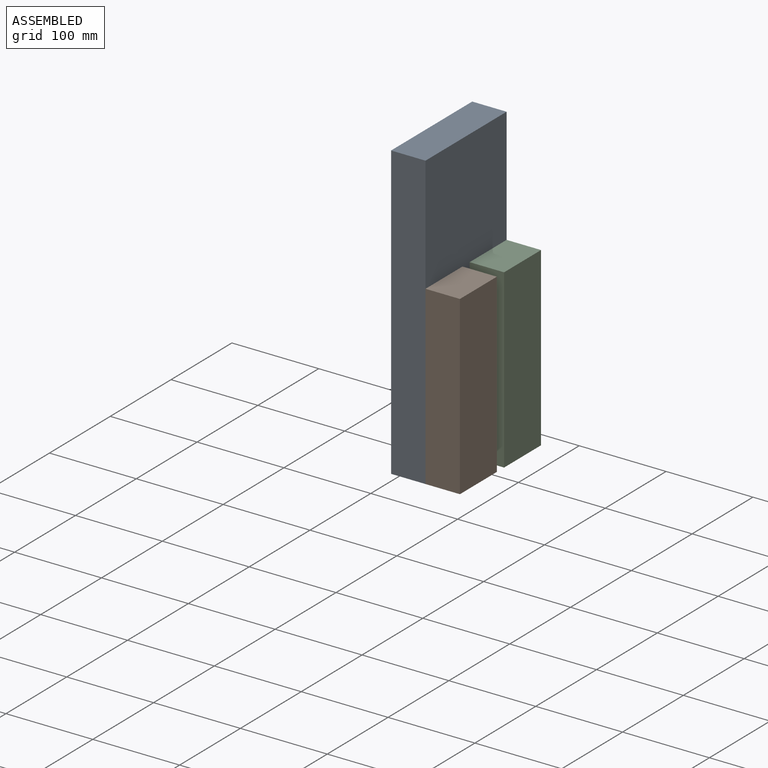
[diagram: assembled view]
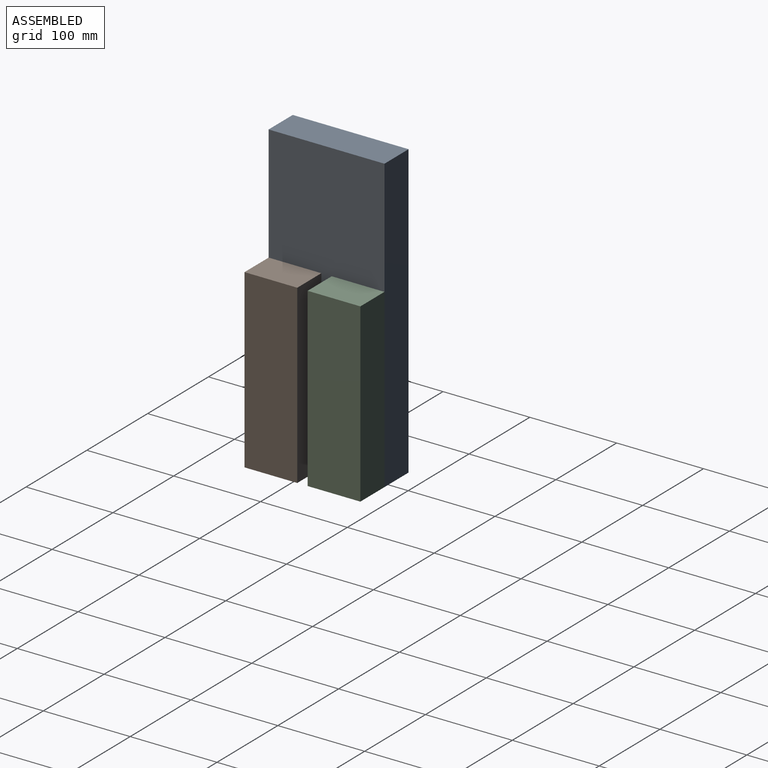
[diagram: assembled view, second angle]
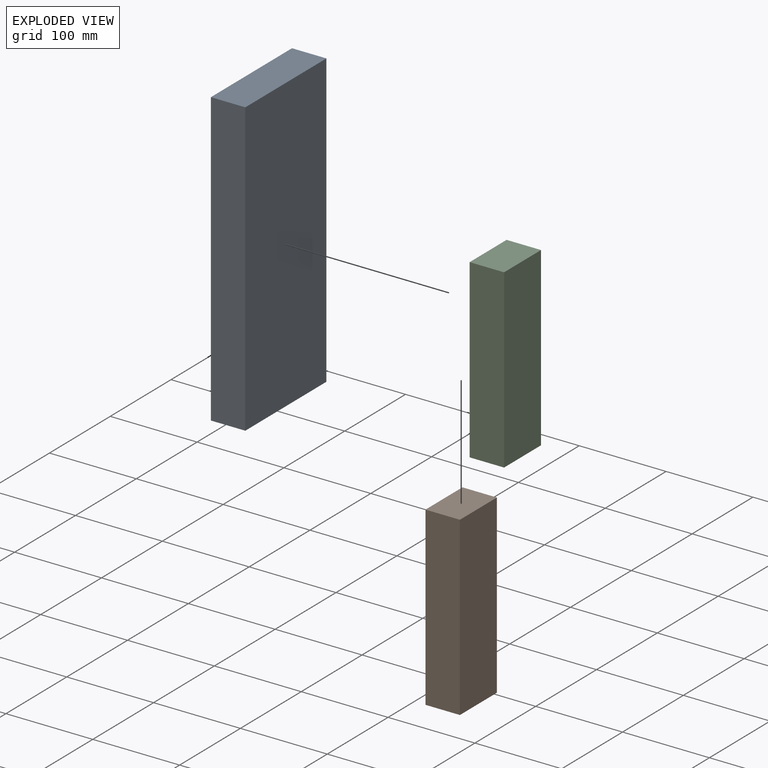
[diagram: exploded view]
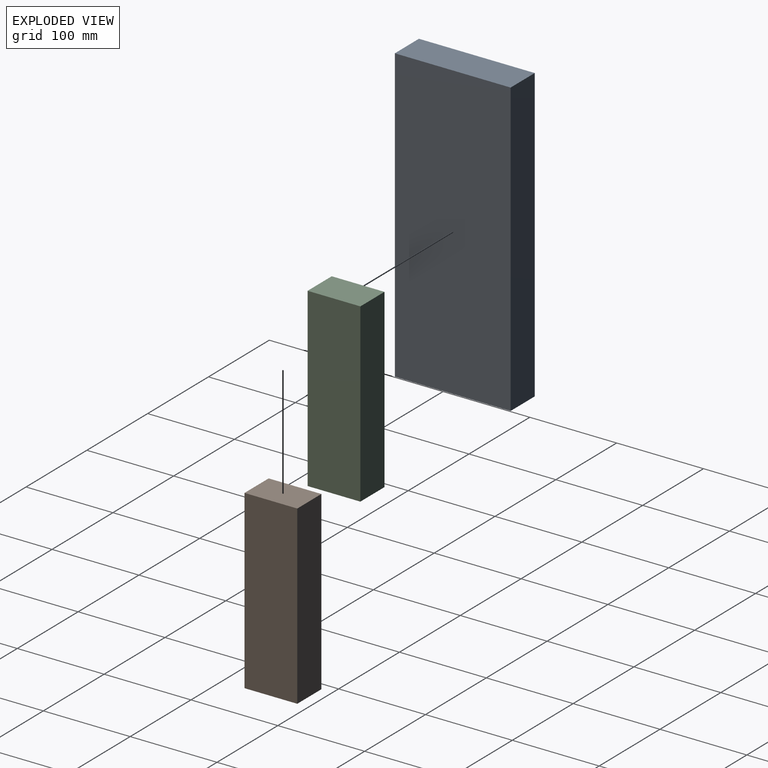
[diagram: exploded view, second angle]
ASSEMBLY  parts=3 mates=2
PART A: 6 faces, bbox 39.6x336.6x133.4 mm
  f0: plane 336.55x133.35mm, normal (-1,0,0), area 44878.9mm2, adj f1,f3,f4,f5
  f1: plane 336.55x39.62mm, normal (0,0,-1), area 13335.5mm2, adj f0,f2,f4,f5
  f2: plane 336.55x133.35mm, normal (1,0,0), area 44878.9mm2, adj f1,f3,f4,f5
  f3: plane 336.55x39.62mm, normal (0,0,1), area 13335.5mm2, adj f0,f2,f4,f5
  f4: plane 133.35x39.62mm, normal (0,-1,0), area 5283.9mm2, adj f0,f1,f2,f3
  f5: plane 133.35x39.62mm, normal (0,1,0), area 5283.9mm2, adj f0,f1,f2,f3
PART B: 6 faces, bbox 39.6x203.2x60.7 mm
  f0: plane 203.2x60.71mm, normal (-1,0,0), area 12335.5mm2, adj f1,f3,f4,f5
  f1: plane 203.2x39.62mm, normal (0,0,-1), area 8051.6mm2, adj f0,f2,f4,f5
  f2: plane 203.2x60.71mm, normal (1,0,0), area 12335.5mm2, adj f1,f3,f4,f5
  f3: plane 203.2x39.62mm, normal (0,0,1), area 8051.6mm2, adj f0,f2,f4,f5
  f4: plane 60.71x39.62mm, normal (0,-1,0), area 2405.4mm2, adj f0,f1,f2,f3
  f5: plane 60.71x39.62mm, normal (0,1,0), area 2405.4mm2, adj f0,f1,f2,f3
PART C: same geometry as B
PLACE A rot(axis=(1,0,0),90deg) t=(-19.81,66.68,336.55)mm
PLACE B rot(axis=(1,0,0),90deg) t=(19.81,-5.97,203.2)mm
PLACE C rot(axis=(1,0,0),90deg) t=(19.81,66.68,203.2)mm
MATE fastened A.f2 <-> C.f0  axis (1,0,0) through (19.81,66.68,0)mm
MATE fastened A.f4 <-> B.f4  axis (0,0,-1) through (19.81,-66.68,0)mm
